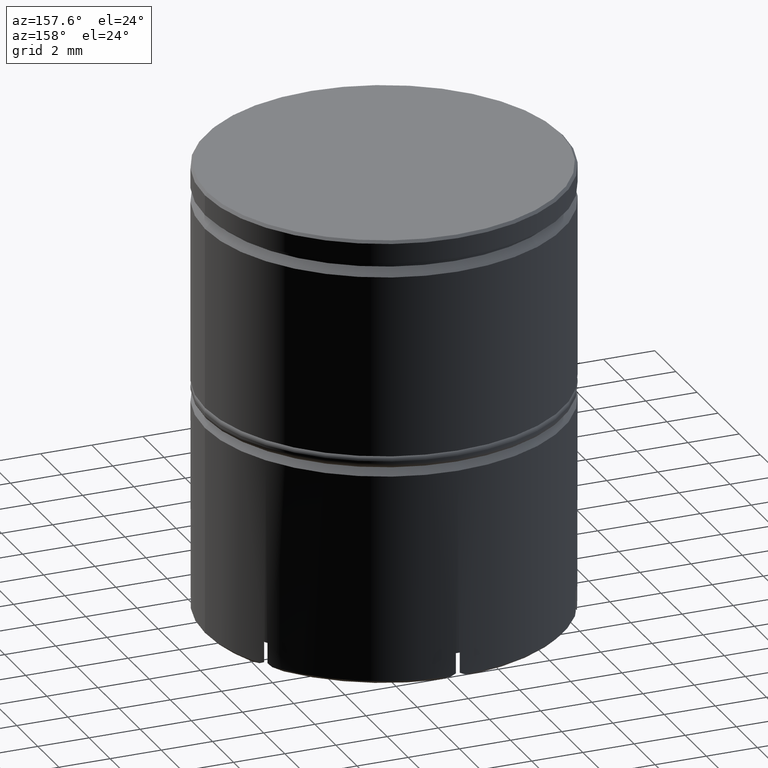
[diagram: clean part render]
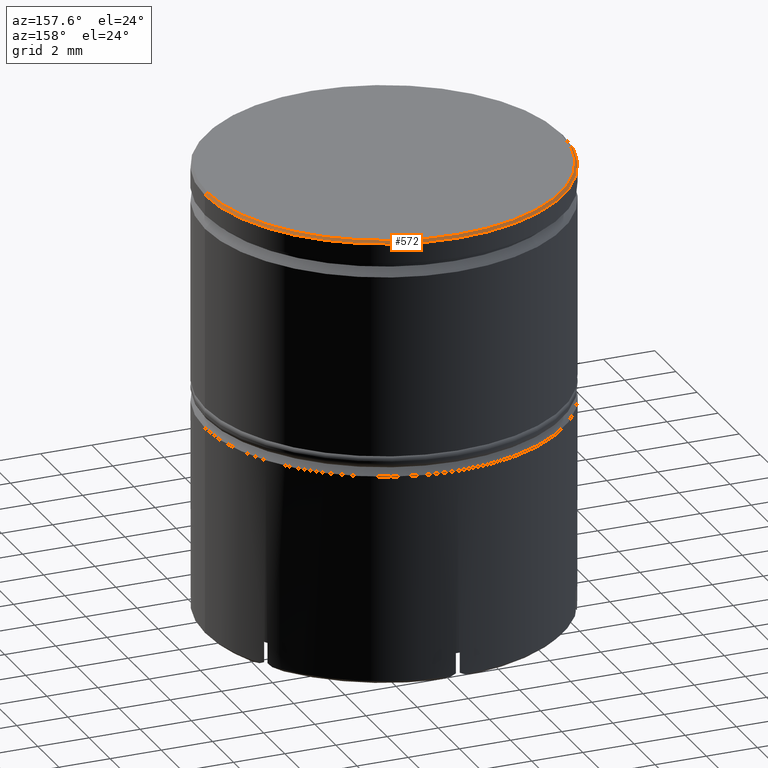
[diagram: same view with one face highlighted and labeled with its STEP entity id]
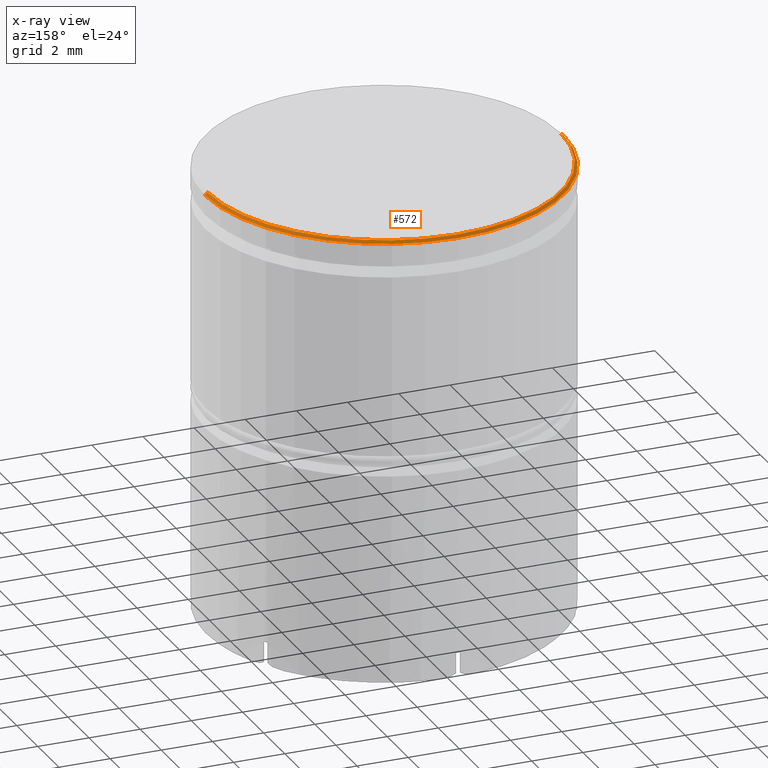
[diagram: x-ray of the same camera — body ghosted, the highlighted face saturated]
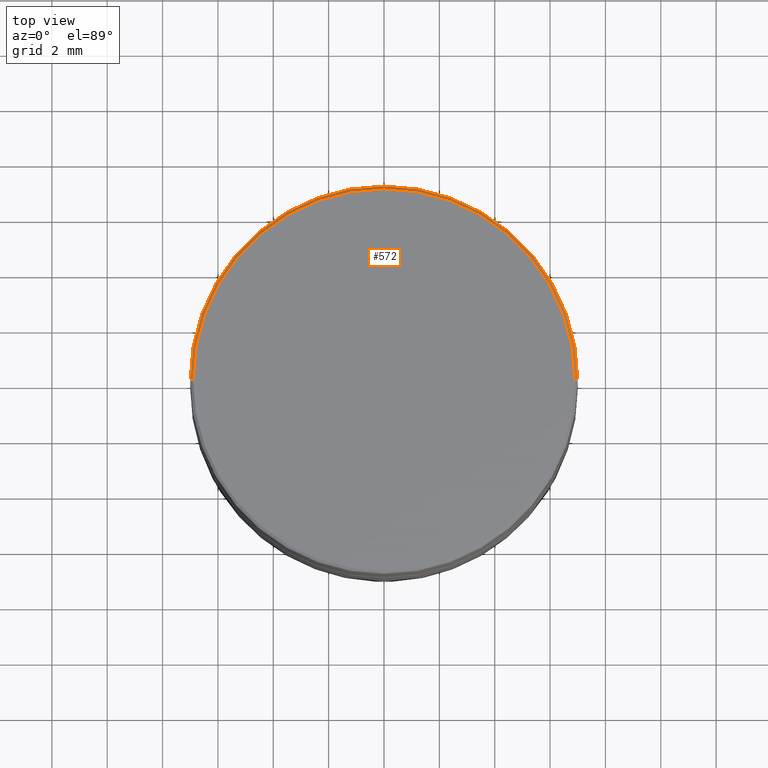
[diagram: same view with one face highlighted and labeled with its STEP entity id]
A machine part, auxiliary view. The second image highlights one B-rep face of the part: STEP entity #572.
The next image is the same camera in x-ray: the body ghosted, the highlighted face saturated — about 0% of this face is hidden behind the body in this view.
A second angle (top view) of the same face is appended — the face is thin or edge-on in the first view.
In plain terms, the highlighted conical surface has half-angle 45 deg.
Its self-contained STEP definition (entity closure, byte-faithful):
#8 = ORIENTED_EDGE ( 'NONE', *, *, #196, .F. ) ;
#83 = LINE ( 'NONE', #693, #1278 ) ;
#94 = DIRECTION ( 'NONE',  ( 0.000000000000000000, 0.000000000000000000, -1.000000000000000000 ) ) ;
#104 = CARTESIAN_POINT ( 'NONE',  ( -6.899999999999999467, 0.000000000000000000, 0.000000000000000000 ) ) ;
#137 = CIRCLE ( 'NONE', #347, 6.899999999999999467 ) ;
#149 = LINE ( 'NONE', #616, #272 ) ;
#152 = CARTESIAN_POINT ( 'NONE',  ( 6.899999999999999467, 8.511295254074105418E-16, 0.000000000000000000 ) ) ;
#196 = EDGE_CURVE ( 'NONE', #721, #1612, #749, .T. ) ;
#216 = FACE_OUTER_BOUND ( 'NONE', #652, .T. ) ;
#272 = VECTOR ( 'NONE', #366, 1000.000000000000114 ) ;
#279 = AXIS2_PLACEMENT_3D ( 'NONE', #1454, #94, #325 ) ;
#325 = DIRECTION ( 'NONE',  ( -1.000000000000000000, 0.000000000000000000, 0.000000000000000000 ) ) ;
#347 = AXIS2_PLACEMENT_3D ( 'NONE', #1383, #741, #1249 ) ;
#366 = DIRECTION ( 'NONE',  ( 0.7071067811865474617, 8.659560562354932858E-17, -0.7071067811865474617 ) ) ;
#456 = AXIS2_PLACEMENT_3D ( 'NONE', #529, #1283, #1158 ) ;
#529 = CARTESIAN_POINT ( 'NONE',  ( 0.000000000000000000, 0.000000000000000000, -0.1000000000000011297 ) ) ;
#536 = EDGE_CURVE ( 'NONE', #912, #721, #83, .T. ) ;
#572 = ADVANCED_FACE ( 'NONE', ( #216 ), #909, .T. ) ;
#616 = CARTESIAN_POINT ( 'NONE',  ( 6.899999999999999467, 8.450062914116736661E-16, 0.000000000000000000 ) ) ;
#652 = EDGE_LOOP ( 'NONE', ( #1005, #812, #8, #1218 ) ) ;
#693 = CARTESIAN_POINT ( 'NONE',  ( -6.899999999999999467, 0.000000000000000000, 0.000000000000000000 ) ) ;
#721 = VERTEX_POINT ( 'NONE', #936 ) ;
#731 = VERTEX_POINT ( 'NONE', #152 ) ;
#741 = DIRECTION ( 'NONE',  ( -0.000000000000000000, -0.000000000000000000, 1.000000000000000000 ) ) ;
#749 = CIRCLE ( 'NONE', #456, 7.000000000000000888 ) ;
#812 = ORIENTED_EDGE ( 'NONE', *, *, #1548, .T. ) ;
#909 = CONICAL_SURFACE ( 'NONE', #279, 6.899999999999999467, 0.7853981633974482790 ) ;
#912 = VERTEX_POINT ( 'NONE', #104 ) ;
#936 = CARTESIAN_POINT ( 'NONE',  ( -7.000000000000000888, 8.572527594031474176E-16, -0.1000000000000011297 ) ) ;
#1005 = ORIENTED_EDGE ( 'NONE', *, *, #1112, .F. ) ;
#1112 = EDGE_CURVE ( 'NONE', #731, #912, #137, .T. ) ;
#1158 = DIRECTION ( 'NONE',  ( 1.000000000000000000, 0.000000000000000000, 0.000000000000000000 ) ) ;
#1195 = DIRECTION ( 'NONE',  ( -0.7071067811865474617, 0.000000000000000000, -0.7071067811865474617 ) ) ;
#1218 = ORIENTED_EDGE ( 'NONE', *, *, #536, .F. ) ;
#1249 = DIRECTION ( 'NONE',  ( 1.000000000000000000, 0.000000000000000000, 0.000000000000000000 ) ) ;
#1278 = VECTOR ( 'NONE', #1195, 1000.000000000000114 ) ;
#1283 = DIRECTION ( 'NONE',  ( 0.000000000000000000, 0.000000000000000000, -1.000000000000000000 ) ) ;
#1383 = CARTESIAN_POINT ( 'NONE',  ( 0.000000000000000000, 0.000000000000000000, 0.000000000000000000 ) ) ;
#1454 = CARTESIAN_POINT ( 'NONE',  ( 0.000000000000000000, 0.000000000000000000, 0.000000000000000000 ) ) ;
#1543 = CARTESIAN_POINT ( 'NONE',  ( 7.000000000000000888, 0.000000000000000000, -0.1000000000000011297 ) ) ;
#1548 = EDGE_CURVE ( 'NONE', #731, #1612, #149, .T. ) ;
#1612 = VERTEX_POINT ( 'NONE', #1543 ) ;